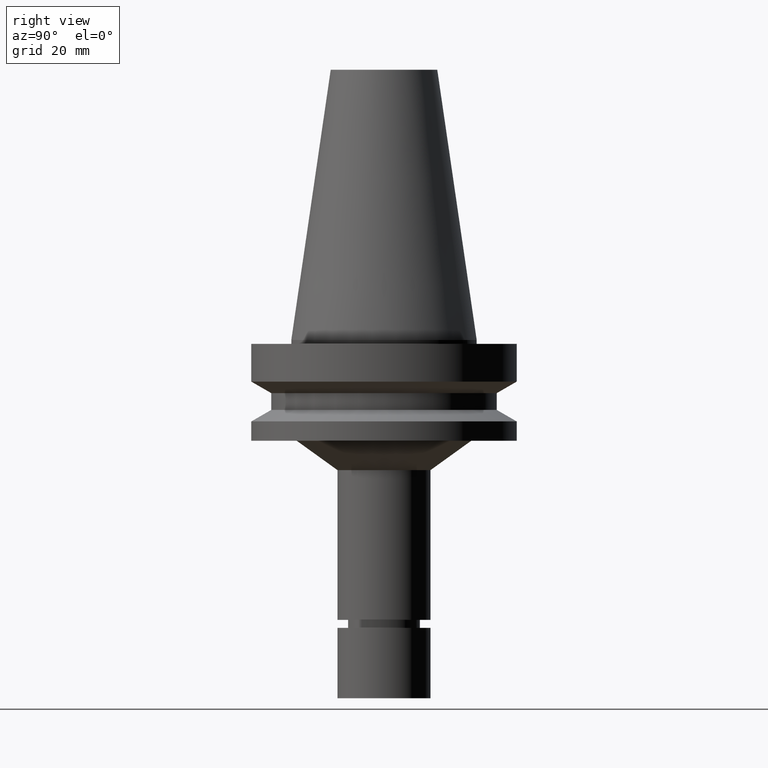
[diagram: clean part render]
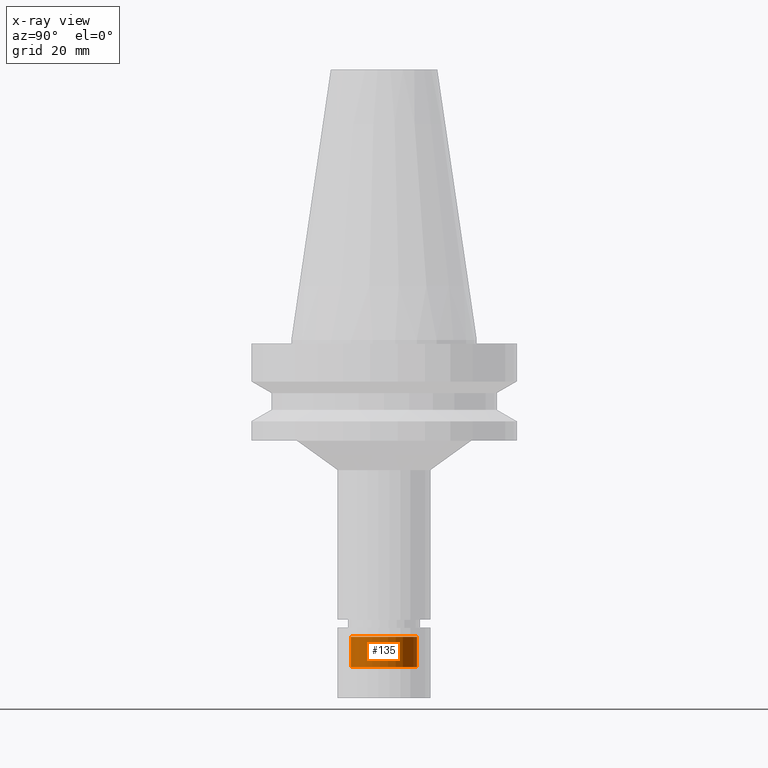
[diagram: x-ray — body ghosted, one internal face saturated and labeled with its STEP entity id]
A machine part, right view, then the same camera in x-ray: the body is ghosted and one INTERNAL B-rep face — a face not visible from any outside direction — is saturated and labeled: STEP entity #135.
In plain terms, the highlighted cylindrical surface (bore or boss wall) has radius 12.5 mm, axis along (-0, -0, 1).
Its self-contained STEP definition (entity closure, byte-faithful):
#92=EDGE_CURVE('Unnamed[1]',#227,#227,#228,.T.);
#110=EDGE_CURVE('Unnamed[1]',#255,#255,#256,.T.);
#135=ADVANCED_FACE('Unnamed[1]',(#293,#294),#295,.T.);
#227=VERTEX_POINT('',#408);
#228=CIRCLE('',#409,12.4999999999998);
#255=VERTEX_POINT('',#443);
#256=CIRCLE('',#444,12.4999999999999);
#293=FACE_BOUND('',#491,.T.);
#294=FACE_BOUND('',#492,.T.);
#295=CYLINDRICAL_SURFACE('',#493,12.4999999999999);
#408=CARTESIAN_POINT('',(7.54962568640258E-015,12.4999999999998,-123.294744111672));
#409=AXIS2_PLACEMENT_3D('',#608,#609,#610);
#443=CARTESIAN_POINT('',(6.85187894896067E-015,12.4999999999999,-111.899675134597));
#444=AXIS2_PLACEMENT_3D('',#640,#641,#642);
#491=EDGE_LOOP('',(#682));
#492=EDGE_LOOP('',(#683));
#493=AXIS2_PLACEMENT_3D('',#684,#685,#686);
#608=CARTESIAN_POINT('',(7.54962568640258E-015,1.64612888549709E-014,-123.294744111672));
#609=DIRECTION('',(-6.12323399573677E-017,-1.52619998477336E-017,1.0));
#610=DIRECTION('',(-5.76168069387474E-033,1.0,1.52619998477336E-017));
#640=CARTESIAN_POINT('',(6.85187894896067E-015,1.62873773139779E-014,-111.899675134597));
#641=DIRECTION('',(-6.12323399573677E-017,-1.52619998477336E-017,1.0));
#642=DIRECTION('',(-5.76168069387474E-033,1.0,1.52619998477336E-017));
#682=ORIENTED_EDGE('',*,*,#110,.F.);
#683=ORIENTED_EDGE('',*,*,#92,.T.);
#684=CARTESIAN_POINT('',(7.20075231768163E-015,1.63743330844744E-014,-117.597209623135));
#685=DIRECTION('',(-6.12323399573677E-017,-1.52619998477336E-017,1.0));
#686=DIRECTION('',(-5.76168069387474E-033,1.0,1.52619998477336E-017));